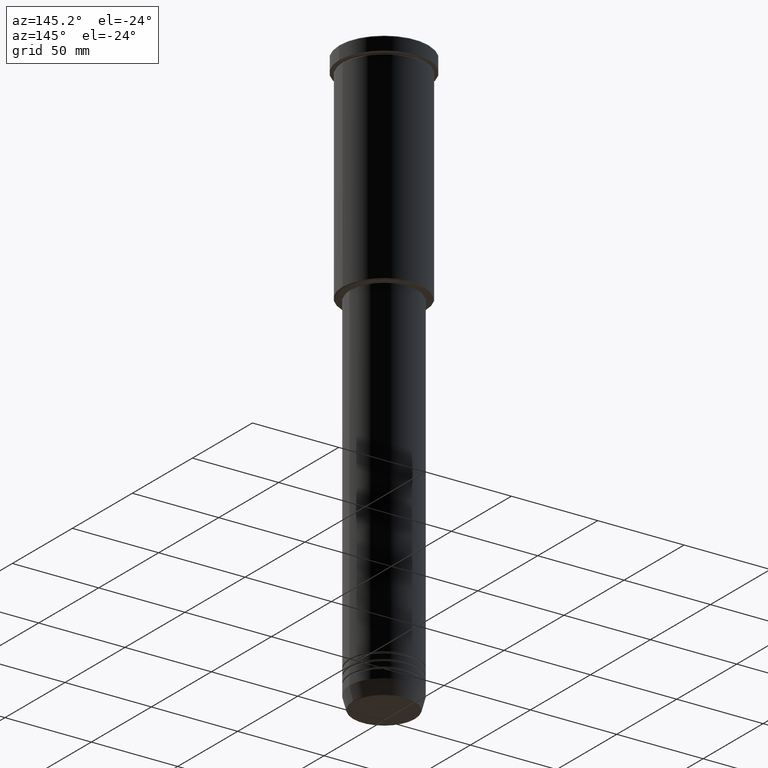
[diagram: clean part render]
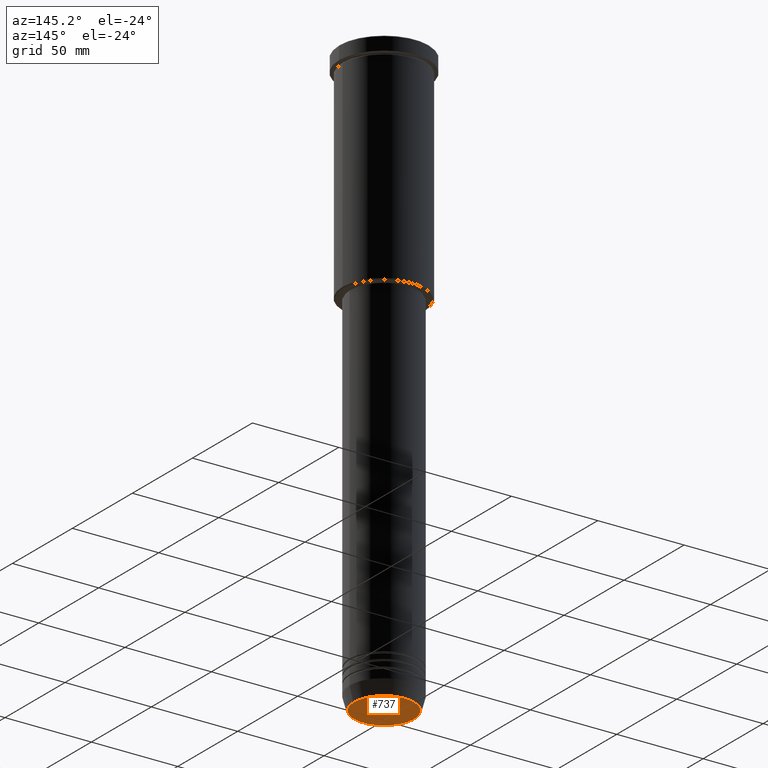
[diagram: same view with one face highlighted and labeled with its STEP entity id]
A machine part, auxiliary view. The second image highlights one B-rep face of the part: STEP entity #737.
In plain terms, the highlighted planar face has unit normal (0, -0, 1).
Its self-contained STEP definition (entity closure, byte-faithful):
#18 = FACE_OUTER_BOUND ( 'NONE', #1091, .T. ) ;
#22 = DIRECTION ( 'NONE',  ( 1.000000000000000000, 0.000000000000000000, 0.000000000000000000 ) ) ;
#146 = AXIS2_PLACEMENT_3D ( 'NONE', #1139, #1071, #239 ) ;
#162 = CIRCLE ( 'NONE', #408, 17.47274296656153680 ) ;
#167 = ORIENTED_EDGE ( 'NONE', *, *, #840, .T. ) ;
#239 = DIRECTION ( 'NONE',  ( 1.000000000000000000, 0.000000000000000000, 0.000000000000000000 ) ) ;
#262 = EDGE_CURVE ( 'NONE', #741, #728, #715, .T. ) ;
#408 = AXIS2_PLACEMENT_3D ( 'NONE', #507, #1148, #607 ) ;
#504 = CARTESIAN_POINT ( 'NONE',  ( -17.47274296656153680, 2.169366823916868503E-15, -340.0000000000000000 ) ) ;
#507 = CARTESIAN_POINT ( 'NONE',  ( 0.000000000000000000, 0.000000000000000000, -340.0000000000000000 ) ) ;
#508 = PLANE ( 'NONE',  #146 ) ;
#607 = DIRECTION ( 'NONE',  ( 1.000000000000000000, 0.000000000000000000, 0.000000000000000000 ) ) ;
#715 = CIRCLE ( 'NONE', #735, 17.47274296656153680 ) ;
#728 = VERTEX_POINT ( 'NONE', #744 ) ;
#735 = AXIS2_PLACEMENT_3D ( 'NONE', #934, #1121, #22 ) ;
#737 = ADVANCED_FACE ( 'NONE', ( #18 ), #508, .F. ) ;
#741 = VERTEX_POINT ( 'NONE', #504 ) ;
#744 = CARTESIAN_POINT ( 'NONE',  ( 17.47274296656153680, 0.000000000000000000, -340.0000000000000000 ) ) ;
#840 = EDGE_CURVE ( 'NONE', #728, #741, #162, .T. ) ;
#934 = CARTESIAN_POINT ( 'NONE',  ( 0.000000000000000000, 0.000000000000000000, -340.0000000000000000 ) ) ;
#968 = ORIENTED_EDGE ( 'NONE', *, *, #262, .T. ) ;
#1071 = DIRECTION ( 'NONE',  ( 0.000000000000000000, -0.000000000000000000, 1.000000000000000000 ) ) ;
#1091 = EDGE_LOOP ( 'NONE', ( #167, #968 ) ) ;
#1121 = DIRECTION ( 'NONE',  ( 0.000000000000000000, 0.000000000000000000, -1.000000000000000000 ) ) ;
#1139 = CARTESIAN_POINT ( 'NONE',  ( 0.000000000000000000, 0.000000000000000000, -340.0000000000000000 ) ) ;
#1148 = DIRECTION ( 'NONE',  ( 0.000000000000000000, 0.000000000000000000, -1.000000000000000000 ) ) ;